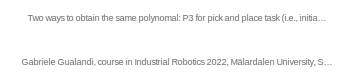
[diagram: root canvas - part 1/4, top left region]
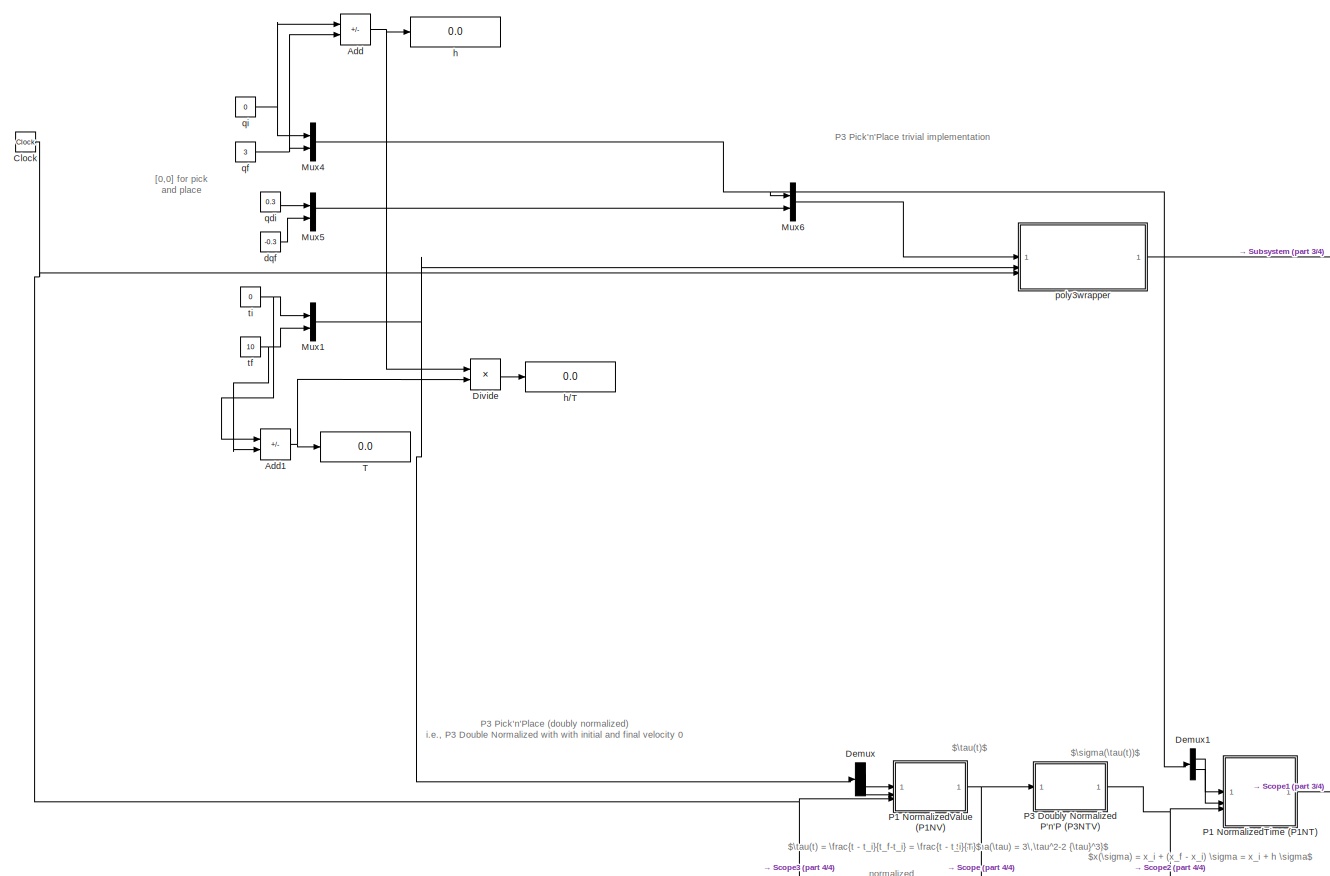
[diagram: root canvas - part 2/4, left side, full height]
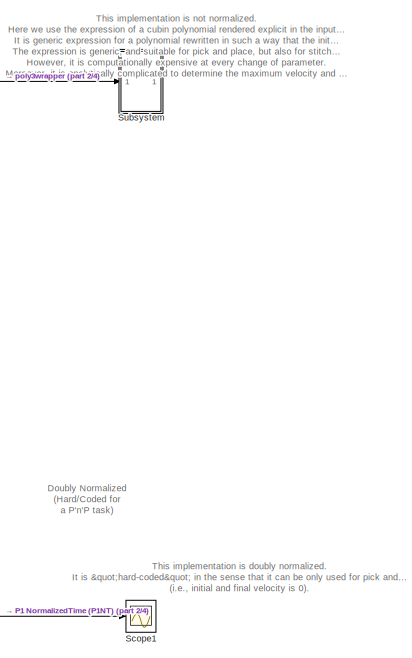
[diagram: root canvas - part 3/4, middle right region]
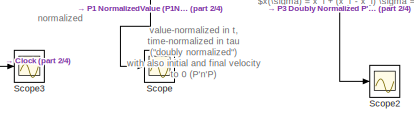
[diagram: root canvas - part 4/4, bottom center region]
MODEL slx_d4b242f76c85
KIND model
CONFIG AbsTol = auto
CONFIG EnableMultiTasking = off
CONFIG FixedStep = 0.0001
CONFIG MaxStep = 0.001
CONFIG MinStep = auto
CONFIG RelTol = 1e-3
CONFIG SampleTimeConstraint = Unconstrained
CONFIG SolverName = FixedStepAuto
CONFIG StartTime = 0.0
CONFIG StopTime = 10
BLOCK [Sum] Add
  IconShape = rectangular
  Inputs = -+
BLOCK [Sum] Add1
  IconShape = rectangular
  Inputs = -+
BLOCK [Clock] Clock
BLOCK [Demux] Demux
  Outputs = 2
BLOCK [Demux] Demux1
  Outputs = 2
BLOCK [Product] Divide
  Inputs = */
BLOCK [Mux] Mux1
  DisplayOption = bar
  Inputs = 2
BLOCK [Mux] Mux4
  DisplayOption = bar
  Inputs = 2
BLOCK [Mux] Mux5
  DisplayOption = bar
  Inputs = 2
BLOCK [Mux] Mux6
  DisplayOption = bar
  Inputs = 2
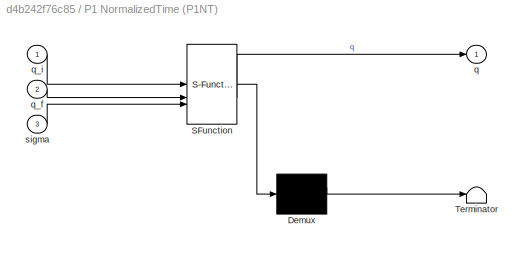
BLOCK [SubSystem] P1 NormalizedTime (P1NT)
  ErrorFcn = Stateflow.Translate.translate
  PermitHierarchicalResolution = ExplicitOnly
  SFBlockType = MATLAB Function
  TreatAsAtomicUnit = on
BLOCK [Demux] P1 NormalizedTime (P1NT)/ Demux 
  Outputs = 1
BLOCK [S-Function] P1 NormalizedTime (P1NT)/ SFunction 
  EnableBusSupport = off
  FunctionName = sf_sfun
  PortCounts = [3 2]
  SFcnIsStateOwnerBlock = off
  SFunctionDeploymentMode = off
  Tag = Stateflow S-Function 3
BLOCK [Terminator] P1 NormalizedTime (P1NT)/ Terminator 
BLOCK [Outport] P1 NormalizedTime (P1NT)/q
BLOCK [Inport] P1 NormalizedTime (P1NT)/q_f
  Port = 2
BLOCK [Inport] P1 NormalizedTime (P1NT)/q_i
BLOCK [Inport] P1 NormalizedTime (P1NT)/sigma
  Port = 3
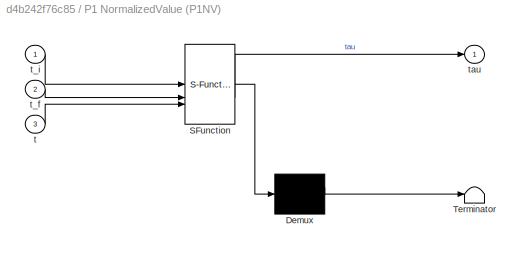
BLOCK [SubSystem] P1 NormalizedValue (P1NV)
  ErrorFcn = Stateflow.Translate.translate
  PermitHierarchicalResolution = ExplicitOnly
  SFBlockType = MATLAB Function
  TreatAsAtomicUnit = on
BLOCK [Demux] P1 NormalizedValue (P1NV)/ Demux 
  Outputs = 1
BLOCK [S-Function] P1 NormalizedValue (P1NV)/ SFunction 
  EnableBusSupport = off
  FunctionName = sf_sfun
  PortCounts = [3 2]
  SFcnIsStateOwnerBlock = off
  SFunctionDeploymentMode = off
  Tag = Stateflow S-Function 1
BLOCK [Terminator] P1 NormalizedValue (P1NV)/ Terminator 
BLOCK [Inport] P1 NormalizedValue (P1NV)/t
  Port = 3
BLOCK [Inport] P1 NormalizedValue (P1NV)/t_f
  Port = 2
BLOCK [Inport] P1 NormalizedValue (P1NV)/t_i
BLOCK [Outport] P1 NormalizedValue (P1NV)/tau
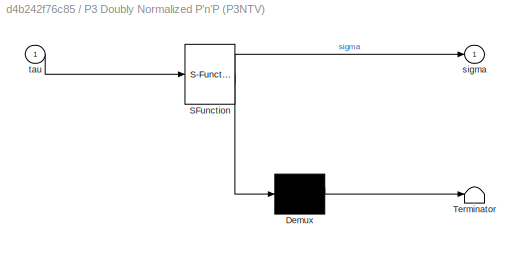
BLOCK [SubSystem] P3 Doubly Normalized P'n'P (P3NTV)
  ErrorFcn = Stateflow.Translate.translate
  PermitHierarchicalResolution = ExplicitOnly
  SFBlockType = MATLAB Function
  TreatAsAtomicUnit = on
BLOCK [Demux] P3 Doubly Normalized P'n'P (P3NTV)/ Demux 
  Outputs = 1
BLOCK [S-Function] P3 Doubly Normalized P'n'P (P3NTV)/ SFunction 
  EnableBusSupport = off
  FunctionName = sf_sfun
  PortCounts = [1 2]
  SFcnIsStateOwnerBlock = off
  SFunctionDeploymentMode = off
  Tag = Stateflow S-Function 2
BLOCK [Terminator] P3 Doubly Normalized P'n'P (P3NTV)/ Terminator 
BLOCK [Outport] P3 Doubly Normalized P'n'P (P3NTV)/sigma
BLOCK [Inport] P3 Doubly Normalized P'n'P (P3NTV)/tau
BLOCK [Scope] Scope
  Floating = off
  NumInputPorts = 1
  ScopeSpecificationString = Simulink.scopes.TimeScopeBlockCfg('CurrentConfiguration', extmgr.ConfigurationSet(extmgr.Configuration('Core','General UI',true),extmgr.Configuration('Core','Source UI',true),extmgr.Configuration('Sources','WiredSimulink',true,'DataLoggingVariableName','ScopeData1'),extmgr.Configuration('Visuals','Time Domain',true,'SerializedDisplays',{struct('MinYLimReal','-0.02083','MaxYLimReal','0.1875','YLabe...<+1402ch>
BLOCK [Scope] Scope1
  Floating = off
  NumInputPorts = 1
  ScopeSpecificationString = Simulink.scopes.TimeScopeBlockCfg('CurrentConfiguration', extmgr.ConfigurationSet(extmgr.Configuration('Core','General UI',true),extmgr.Configuration('Core','Source UI',true),extmgr.Configuration('Sources','WiredSimulink',true,'DataLoggingVariableName','ScopeData1'),extmgr.Configuration('Visuals','Time Domain',true,'SerializedDisplays',{struct('MinYLimReal','-0.375','MaxYLimReal','3.375','YLabelRe...<+1402ch>
BLOCK [Scope] Scope2
  Floating = off
  NumInputPorts = 1
  ScopeSpecificationString = Simulink.scopes.TimeScopeBlockCfg('CurrentConfiguration', extmgr.ConfigurationSet(extmgr.Configuration('Core','General UI',true),extmgr.Configuration('Core','Source UI',true),extmgr.Configuration('Sources','WiredSimulink',true,'DataLoggingVariableName','ScopeData2'),extmgr.Configuration('Visuals','Time Domain',true,'SerializedDisplays',{struct('MinYLimReal','-0.125','MaxYLimReal','1.125','YLabelRe...<+1404ch>
BLOCK [Scope] Scope3
  Floating = off
  NumInputPorts = 1
  ScopeSpecificationString = Simulink.scopes.TimeScopeBlockCfg('CurrentConfiguration', extmgr.ConfigurationSet(extmgr.Configuration('Core','General UI',true),extmgr.Configuration('Core','Source UI',true),extmgr.Configuration('Sources','WiredSimulink',true,'DataLoggingVariableName','ScopeData3'),extmgr.Configuration('Visuals','Time Domain',true,'SerializedDisplays',{struct('MinYLimReal','-0.25','MaxYLimReal','2.25','YLabelReal...<+1375ch>
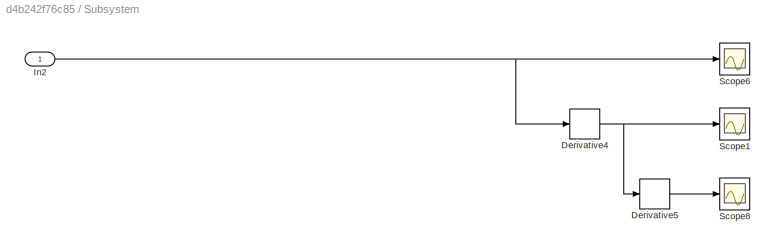
BLOCK [SubSystem] Subsystem
BLOCK [Derivative] Subsystem/Derivative4
BLOCK [Derivative] Subsystem/Derivative5
BLOCK [Inport] Subsystem/In2
BLOCK [Scope] Subsystem/Scope1
  Floating = off
  NumInputPorts = 1
  ScopeSpecificationString = Simulink.scopes.TimeScopeBlockCfg('CurrentConfiguration', extmgr.ConfigurationSet(extmgr.Configuration('Core','General UI',true),extmgr.Configuration('Core','Source UI',true),extmgr.Configuration('Sources','WiredSimulink',true,'DataLoggingVariableName','ScopeData4'),extmgr.Configuration('Visuals','Time Domain',true,'SerializedDisplays',{struct('MinYLimReal','-0.39999','MaxYLimReal','0.6','YLabelRe...<+1383ch>
BLOCK [Scope] Subsystem/Scope6
  Floating = off
  NumInputPorts = 1
  ScopeSpecificationString = Simulink.scopes.TimeScopeBlockCfg('CurrentConfiguration', extmgr.ConfigurationSet(extmgr.Configuration('Core','General UI',true),extmgr.Configuration('Core','Source UI',true),extmgr.Configuration('Sources','WiredSimulink',true,'DataLoggingVariableName','ScopeData6'),extmgr.Configuration('Visuals','Time Domain',true,'SerializedDisplays',{struct('MinYLimReal','-0.40016','MaxYLimReal','3.60142','YLab...<+1414ch>
BLOCK [Scope] Subsystem/Scope8
  Floating = off
  NumInputPorts = 1
  ScopeSpecificationString = Simulink.scopes.TimeScopeBlockCfg('CurrentConfiguration', extmgr.ConfigurationSet(extmgr.Configuration('Core','General UI',true),extmgr.Configuration('Core','Source UI',true),extmgr.Configuration('Sources','WiredSimulink',true,'DataLoggingVariableName','ScopeData8'),extmgr.Configuration('Visuals','Time Domain',true,'SerializedDisplays',{struct('MinYLimReal','-375.2775','MaxYLimReal','3375.0975','Y...<+1411ch>
BLOCK [Display] T
  Decimation = 1
BLOCK [Constant] dqf
  Value = -0.3
BLOCK [Display] h
  Decimation = 1
BLOCK [Display] h//T
  Decimation = 1
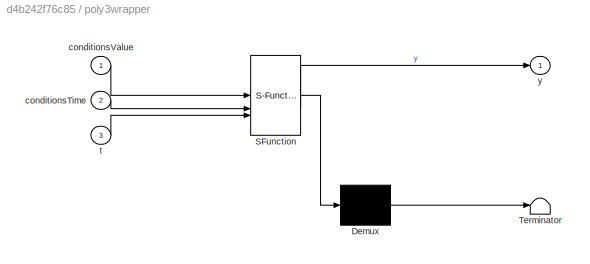
BLOCK [SubSystem] poly3wrapper
  ErrorFcn = Stateflow.Translate.translate
  PermitHierarchicalResolution = ExplicitOnly
  SFBlockType = MATLAB Function
  TreatAsAtomicUnit = on
BLOCK [Demux] poly3wrapper/ Demux 
  Outputs = 1
BLOCK [S-Function] poly3wrapper/ SFunction 
  EnableBusSupport = off
  FunctionName = sf_sfun
  PortCounts = [3 2]
  SFcnIsStateOwnerBlock = off
  SFunctionDeploymentMode = off
  Tag = Stateflow S-Function 4
BLOCK [Terminator] poly3wrapper/ Terminator 
BLOCK [Inport] poly3wrapper/conditionsTime
  Port = 2
BLOCK [Inport] poly3wrapper/conditionsValue
BLOCK [Inport] poly3wrapper/t
  Port = 3
BLOCK [Outport] poly3wrapper/y
BLOCK [Constant] qdi
  Value = 0.3
BLOCK [Constant] qf
  Value = 3
BLOCK [Constant] qi
  Value = 0
BLOCK [Constant] tf
  Value = 10
BLOCK [Constant] ti
  Value = 0
ANNOTATION (root): Gabriele Gualandi, course in Industrial Robotics 2022, Mälardalen University, Sweden
ANNOTATION (root): Two ways to obtain the same polynomal: P3 for pick and place task (i.e., initial and final velocity are 0)
ANNOTATION (root): This implementation is not normalized. Here we use the expression of a cubin polynomial rendered explicit in the input values/derivatives. It is generic expression for a polynomial rewritten in such a way that the initial conditions (temporal and value) are inputs. Such expression was derived externally solving a linear system (see poly3generateSym.m) The expression is generic, and suitable for pi...<+273ch>
ANNOTATION (root): This implementation is doubly normalized. It is "hard-coded" in the sense that it can be only used for pick and place operations (i.e., initial and final velocity is 0).
ANNOTATION (root): $\sigma(\tau) = 3\,\tau^2-2 {\tau}^3}$
ANNOTATION (root): $\tau(t) = \frac{t - t_i}{t_f-t_i} = \frac{t - t_i}{T}$
ANNOTATION (root): $\tau(t)$
ANNOTATION (root): $x(\sigma) = x_i + (x_f - x_i) \sigma = x_i + h \sigma$
ANNOTATION (root): $\sigma(\tau(t))$
ANNOTATION (root): Doubly Normalized (Hard/Coded for a P'n'P task)
ANNOTATION (root): P3 Pick'n'Place (doubly normalized) i.e., P3 Double Normalized with with initial and final velocity 0
ANNOTATION (root): P3 Pick'n'Place trivial implementation
ANNOTATION (root): [0,0] for pick and place
ANNOTATION (root): normalized
ANNOTATION (root): value-normalized in t, time-normalized in tau ("doubly normalized") with also initial and final velocity to 0 (P'n'P)
NET Add1:1 -> Divide:2, T:1
NET Add:1 -> Divide:1, h:1
NET Clock:1 -> P1 NormalizedValue (P1NV):3, Scope3:1, poly3wrapper:3
LINE Demux1:1 -> P1 NormalizedTime (P1NT):1
LINE Demux1:2 -> P1 NormalizedTime (P1NT):2
LINE Demux:1 -> P1 NormalizedValue (P1NV):1
LINE Demux:2 -> P1 NormalizedValue (P1NV):2
LINE Divide:1 -> h//T:1
NET Mux1:1 -> Demux:1, poly3wrapper:2
NET Mux4:1 -> Demux1:1, Mux6:1
LINE Mux5:1 -> Mux6:2
LINE Mux6:1 -> poly3wrapper:1
LINE P1 NormalizedTime (P1NT):1 -> Scope1:1
NET P1 NormalizedValue (P1NV):1 -> P3 Doubly Normalized P'n'P (P3NTV):1, Scope:1
NET P3 Doubly Normalized P'n'P (P3NTV):1 -> P1 NormalizedTime (P1NT):3, Scope2:1
NET Subsystem/Derivative4:1 -> Subsystem/Derivative5:1, Subsystem/Scope1:1
LINE Subsystem/Derivative5:1 -> Subsystem/Scope8:1
NET Subsystem/In2:1 -> Subsystem/Derivative4:1, Subsystem/Scope6:1
LINE dqf:1 -> Mux5:2
LINE poly3wrapper:1 -> Subsystem:1
LINE qdi:1 -> Mux5:1
NET qf:1 -> Add:2, Mux4:2
NET qi:1 -> Add:1, Mux4:1
NET tf:1 -> Add1:2, Mux1:2
NET ti:1 -> Add1:1, Mux1:1
note: NET lines group one-source signal fan-out (src -> all destinations, sorted); 1:1 wires keep LINE
CHART P3 Doubly Normalized P'n'P
(P3NTV) states=1 transitions=1
  STATE_LABEL 'eML_blk_kernel()'
  STATE_LABEL 'SCRIPT:\nfunction sigma = fcn(tau)\n\nsigma = 3 * tau^2 - 2 * tau^3;\n'
CHART P1 NormalizedTime
(P1NT) states=1 transitions=1
  STATE_LABEL 'eML_blk_kernel()'
  STATE_LABEL 'SCRIPT:\nfunction q = fcn(q_i,q_f,sigma)\n\nh = q_f - q_i;\nq = q_i + h * sigma;\n'
CHART poly3wrapper states=1 transitions=1
  STATE_LABEL 'eML_blk_kernel()'
  STATE_LABEL 'SCRIPT:\nfunction y = fcn(conditionsValue, conditionsTime, t)\n    y = poly3(conditionsValue,conditionsTime,t);\n'
CHART P1 NormalizedValue
(P1NV) states=1 transitions=1
  STATE_LABEL 'eML_blk_kernel()'
  STATE_LABEL 'SCRIPT:\nfunction tau = t2tau(t_i,t_f,t)\nT = t_f - t_i;\ntau = (t - t_i)/T;\n'
CHART  states=0 transitions=0
CHART  states=0 transitions=0
CHART  states=0 transitions=0
CHART  states=0 transitions=0
